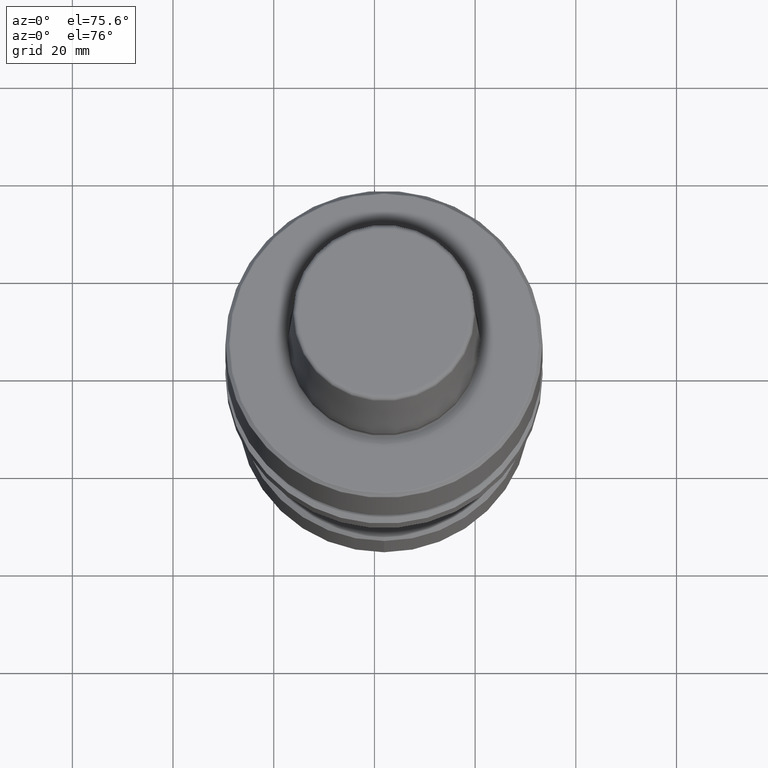
[diagram: clean part render]
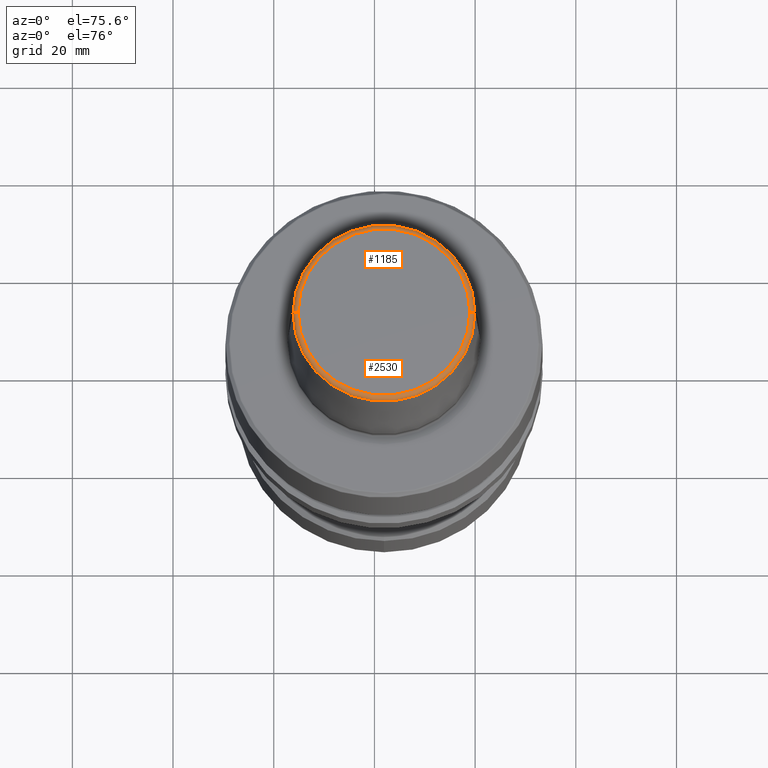
[diagram: same view with one multi-face feature highlighted, each face labeled with its STEP entity id]
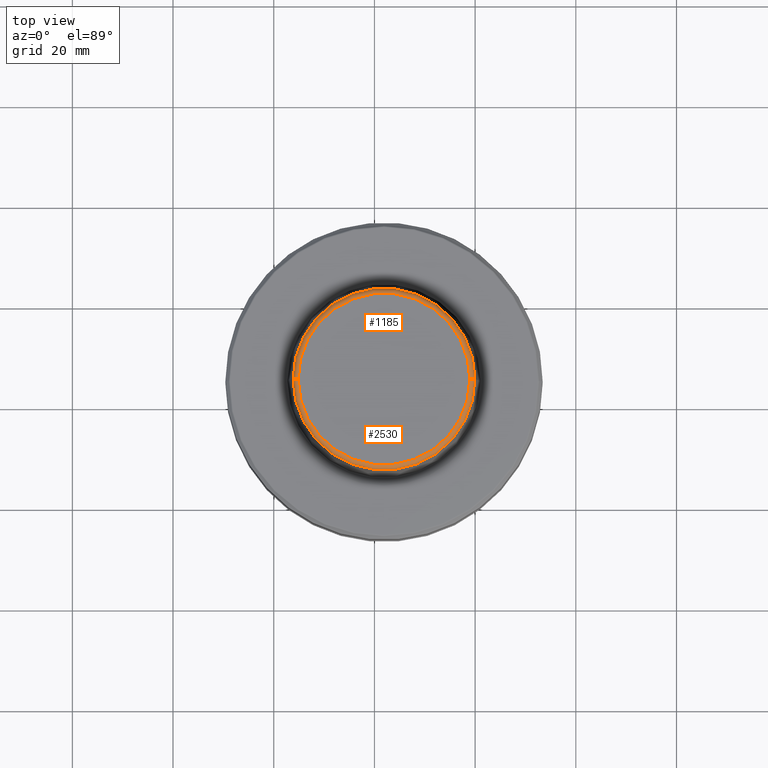
[diagram: same view with one multi-face feature highlighted, each face labeled with its STEP entity id]
A machine part, auxiliary view. The highlighted faces form ONE feature: a constant-radius fillet chain: 2 tangent blend faces with common blend radius 1 mm. The faces share edges in the B-rep.
A second angle (top view) of the same feature is appended — it is thin or edge-on in the first view.
Their STEP definitions:
[1] entity #2530 (Torus):
#8 = AXIS2_PLACEMENT_3D ( 'NONE', #1970, #3210, #2217 ) ;
#162 = DIRECTION ( 'NONE',  ( 1.224646799147353200E-016, 1.000000000000000000, 0.0000000000000000000 ) ) ;
#204 = DIRECTION ( 'NONE',  ( 1.000000000000000000, 0.0000000000000000000, 0.0000000000000000000 ) ) ;
#215 = ORIENTED_EDGE ( 'NONE', *, *, #625, .T. ) ;
#274 = DIRECTION ( 'NONE',  ( -0.0000000000000000000, -0.0000000000000000000, 1.000000000000000000 ) ) ;
#397 = CIRCLE ( 'NONE', #2133, 1.000000000000000900 ) ;
#406 = AXIS2_PLACEMENT_3D ( 'NONE', #3191, #1695, #204 ) ;
#411 = CARTESIAN_POINT ( 'NONE',  ( 18.95951066352823800, 4.065099942295091800, 79.11820766701714500 ) ) ;
#430 = CARTESIAN_POINT ( 'NONE',  ( 19.95825807285890700, 4.065099942295094400, 78.16824377753026500 ) ) ;
#625 = EDGE_CURVE ( 'NONE', #712, #2323, #1127, .T. ) ;
#646 = EDGE_LOOP ( 'NONE', ( #2453, #215, #878, #796 ) ) ;
#666 = CIRCLE ( 'NONE', #406, 17.05687731099929700 ) ;
#712 = VERTEX_POINT ( 'NONE', #2603 ) ;
#796 = ORIENTED_EDGE ( 'NONE', *, *, #3124, .F. ) ;
#878 = ORIENTED_EDGE ( 'NONE', *, *, #2287, .T. ) ;
#904 = DIRECTION ( 'NONE',  ( 0.0000000000000000000, -1.000000000000000000, 0.0000000000000000000 ) ) ;
#948 = CIRCLE ( 'NONE', #2452, 1.000000000000000900 ) ;
#1127 = CIRCLE ( 'NONE', #1518, 18.05562472032996600 ) ;
#1283 = CARTESIAN_POINT ( 'NONE',  ( -15.15424395847035700, 4.065099942295093500, 79.11820766701714500 ) ) ;
#1518 = AXIS2_PLACEMENT_3D ( 'NONE', #1753, #274, #2011 ) ;
#1648 = CARTESIAN_POINT ( 'NONE',  ( -15.15424395847035700, 4.065099942295093500, 78.11820766701714500 ) ) ;
#1695 = DIRECTION ( 'NONE',  ( -0.0000000000000000000, -0.0000000000000000000, 1.000000000000000000 ) ) ;
#1753 = CARTESIAN_POINT ( 'NONE',  ( 1.902633352528940900, 4.065099942295091800, 78.16824377753026500 ) ) ;
#1910 = DIRECTION ( 'NONE',  ( -1.000000000000000000, 0.0000000000000000000, 0.0000000000000000000 ) ) ;
#1970 = CARTESIAN_POINT ( 'NONE',  ( 1.902633352528940900, 4.065099942295091800, 78.11820766701714500 ) ) ;
#2011 = DIRECTION ( 'NONE',  ( 1.000000000000000000, 0.0000000000000000000, 0.0000000000000000000 ) ) ;
#2133 = AXIS2_PLACEMENT_3D ( 'NONE', #1648, #162, #1910 ) ;
#2198 = VERTEX_POINT ( 'NONE', #1283 ) ;
#2217 = DIRECTION ( 'NONE',  ( 1.000000000000000000, 0.0000000000000000000, 0.0000000000000000000 ) ) ;
#2287 = EDGE_CURVE ( 'NONE', #2323, #2941, #948, .T. ) ;
#2323 = VERTEX_POINT ( 'NONE', #430 ) ;
#2367 = FACE_OUTER_BOUND ( 'NONE', #646, .T. ) ;
#2392 = CARTESIAN_POINT ( 'NONE',  ( 18.95951066352823800, 4.065099942295091800, 78.11820766701714500 ) ) ;
#2452 = AXIS2_PLACEMENT_3D ( 'NONE', #2392, #904, #2646 ) ;
#2453 = ORIENTED_EDGE ( 'NONE', *, *, #3042, .F. ) ;
#2530 = ADVANCED_FACE ( 'NONE', ( #2367 ), #2963, .T. ) ;
#2603 = CARTESIAN_POINT ( 'NONE',  ( -16.15299136780102500, 4.065099942295091800, 78.16824377753026500 ) ) ;
#2646 = DIRECTION ( 'NONE',  ( 0.0000000000000000000, 0.0000000000000000000, -1.000000000000000000 ) ) ;
#2941 = VERTEX_POINT ( 'NONE', #411 ) ;
#2963 = TOROIDAL_SURFACE ( 'NONE', #8, 17.05687731099929700, 1.000000000000000400 ) ;
#3042 = EDGE_CURVE ( 'NONE', #712, #2198, #397, .T. ) ;
#3124 = EDGE_CURVE ( 'NONE', #2198, #2941, #666, .T. ) ;
#3191 = CARTESIAN_POINT ( 'NONE',  ( 1.902633352528940900, 4.065099942295091800, 79.11820766701714500 ) ) ;
#3210 = DIRECTION ( 'NONE',  ( -0.0000000000000000000, -0.0000000000000000000, 1.000000000000000000 ) ) ;
[2] entity #1185 (Torus):
#63 = ORIENTED_EDGE ( 'NONE', *, *, #2569, .T. ) ;
#115 = EDGE_CURVE ( 'NONE', #2941, #2198, #991, .T. ) ;
#162 = DIRECTION ( 'NONE',  ( 1.224646799147353200E-016, 1.000000000000000000, 0.0000000000000000000 ) ) ;
#167 = AXIS2_PLACEMENT_3D ( 'NONE', #1472, #3243, #1740 ) ;
#255 = ORIENTED_EDGE ( 'NONE', *, *, #115, .F. ) ;
#328 = ORIENTED_EDGE ( 'NONE', *, *, #2287, .F. ) ;
#388 = AXIS2_PLACEMENT_3D ( 'NONE', #934, #450, #2679 ) ;
#397 = CIRCLE ( 'NONE', #2133, 1.000000000000000900 ) ;
#411 = CARTESIAN_POINT ( 'NONE',  ( 18.95951066352823800, 4.065099942295091800, 79.11820766701714500 ) ) ;
#430 = CARTESIAN_POINT ( 'NONE',  ( 19.95825807285890700, 4.065099942295094400, 78.16824377753026500 ) ) ;
#450 = DIRECTION ( 'NONE',  ( -0.0000000000000000000, -0.0000000000000000000, 1.000000000000000000 ) ) ;
#712 = VERTEX_POINT ( 'NONE', #2603 ) ;
#783 = CARTESIAN_POINT ( 'NONE',  ( 1.902633352528940900, 4.065099942295091800, 79.11820766701714500 ) ) ;
#904 = DIRECTION ( 'NONE',  ( 0.0000000000000000000, -1.000000000000000000, 0.0000000000000000000 ) ) ;
#934 = CARTESIAN_POINT ( 'NONE',  ( 1.902633352528940900, 4.065099942295091800, 78.11820766701714500 ) ) ;
#948 = CIRCLE ( 'NONE', #2452, 1.000000000000000900 ) ;
#991 = CIRCLE ( 'NONE', #3032, 17.05687731099929700 ) ;
#1026 = DIRECTION ( 'NONE',  ( 1.000000000000000000, 0.0000000000000000000, 0.0000000000000000000 ) ) ;
#1185 = ADVANCED_FACE ( 'NONE', ( #1516 ), #2347, .T. ) ;
#1283 = CARTESIAN_POINT ( 'NONE',  ( -15.15424395847035700, 4.065099942295093500, 79.11820766701714500 ) ) ;
#1472 = CARTESIAN_POINT ( 'NONE',  ( 1.902633352528940900, 4.065099942295091800, 78.16824377753026500 ) ) ;
#1516 = FACE_OUTER_BOUND ( 'NONE', #2100, .T. ) ;
#1648 = CARTESIAN_POINT ( 'NONE',  ( -15.15424395847035700, 4.065099942295093500, 78.11820766701714500 ) ) ;
#1740 = DIRECTION ( 'NONE',  ( 1.000000000000000000, 0.0000000000000000000, 0.0000000000000000000 ) ) ;
#1910 = DIRECTION ( 'NONE',  ( -1.000000000000000000, 0.0000000000000000000, 0.0000000000000000000 ) ) ;
#2100 = EDGE_LOOP ( 'NONE', ( #63, #2535, #255, #328 ) ) ;
#2133 = AXIS2_PLACEMENT_3D ( 'NONE', #1648, #162, #1910 ) ;
#2198 = VERTEX_POINT ( 'NONE', #1283 ) ;
#2226 = CIRCLE ( 'NONE', #167, 18.05562472032996600 ) ;
#2287 = EDGE_CURVE ( 'NONE', #2323, #2941, #948, .T. ) ;
#2323 = VERTEX_POINT ( 'NONE', #430 ) ;
#2347 = TOROIDAL_SURFACE ( 'NONE', #388, 17.05687731099929700, 1.000000000000000400 ) ;
#2392 = CARTESIAN_POINT ( 'NONE',  ( 18.95951066352823800, 4.065099942295091800, 78.11820766701714500 ) ) ;
#2452 = AXIS2_PLACEMENT_3D ( 'NONE', #2392, #904, #2646 ) ;
#2522 = DIRECTION ( 'NONE',  ( -0.0000000000000000000, -0.0000000000000000000, 1.000000000000000000 ) ) ;
#2535 = ORIENTED_EDGE ( 'NONE', *, *, #3042, .T. ) ;
#2569 = EDGE_CURVE ( 'NONE', #2323, #712, #2226, .T. ) ;
#2603 = CARTESIAN_POINT ( 'NONE',  ( -16.15299136780102500, 4.065099942295091800, 78.16824377753026500 ) ) ;
#2646 = DIRECTION ( 'NONE',  ( 0.0000000000000000000, 0.0000000000000000000, -1.000000000000000000 ) ) ;
#2679 = DIRECTION ( 'NONE',  ( 1.000000000000000000, 0.0000000000000000000, 0.0000000000000000000 ) ) ;
#2941 = VERTEX_POINT ( 'NONE', #411 ) ;
#3032 = AXIS2_PLACEMENT_3D ( 'NONE', #783, #2522, #1026 ) ;
#3042 = EDGE_CURVE ( 'NONE', #712, #2198, #397, .T. ) ;
#3243 = DIRECTION ( 'NONE',  ( -0.0000000000000000000, -0.0000000000000000000, 1.000000000000000000 ) ) ;